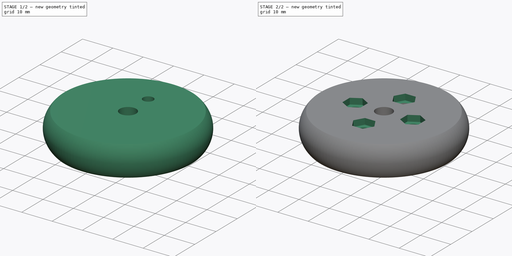
[diagram: build sequence overview — one tinted view per stage of 2, left to right]
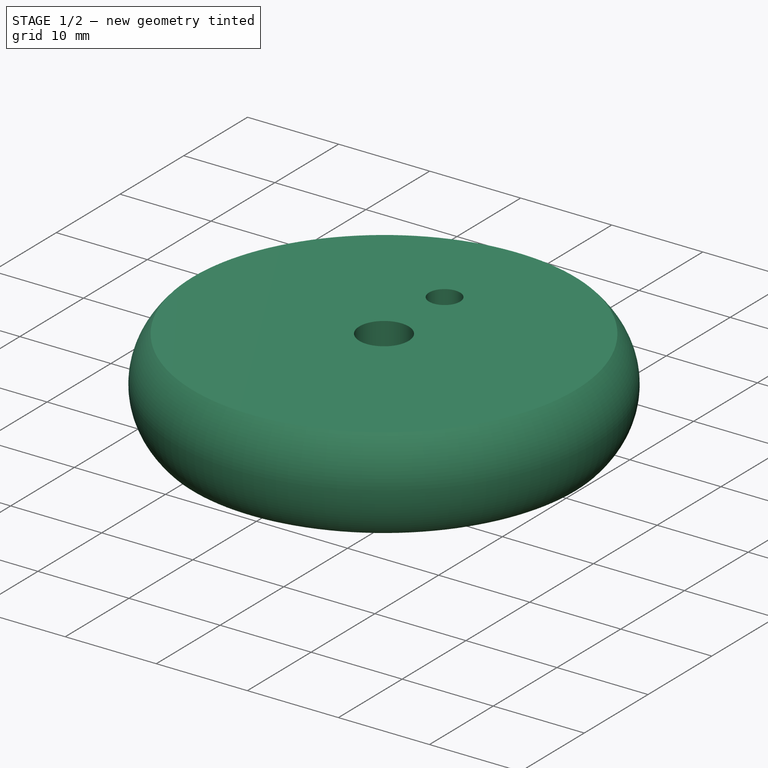
[diagram: stage 1 of 2 — iso view after this stage's code; geometry added in this stage tinted green]
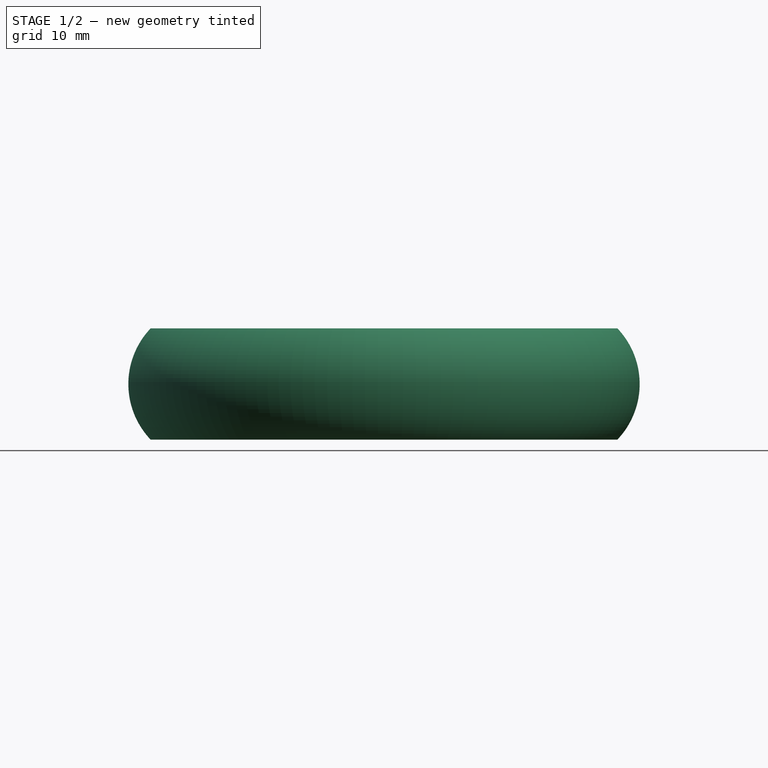
[diagram: stage 1 of 2 — front view after this stage's code; geometry added in this stage tinted green]
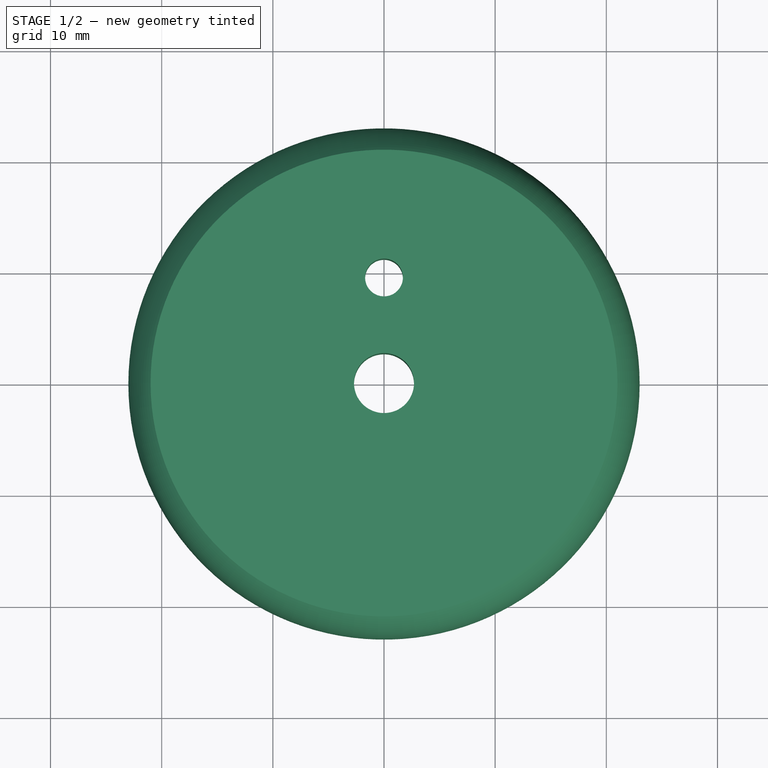
[diagram: stage 1 of 2 — top view after this stage's code; geometry added in this stage tinted green]
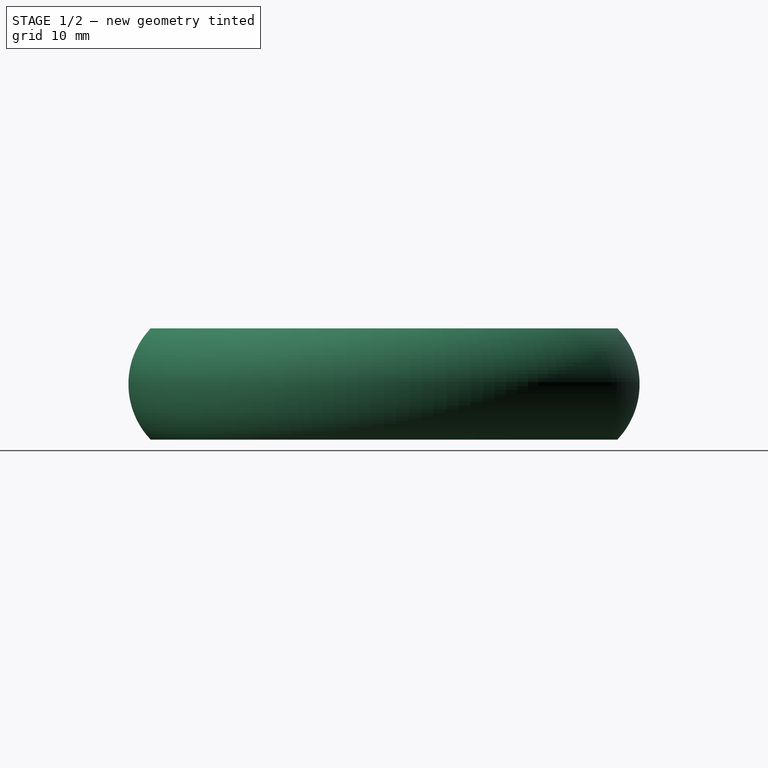
[diagram: stage 1 of 2 — right view after this stage's code; geometry added in this stage tinted green]
FCSTD DOCUMENT  (FreeCAD 0.20R29410 (Git))
Label: DriveWheelHub
License: All rights reserved
LicenseURL: http://en.wikipedia.org/wiki/All_rights_reserved
objects: App::DocumentObjectGroup×3, Sketcher::SketchObject×3, PartDesign::CoordinateSystem×2, PartDesign::Pocket×2, App::FeaturePython×1, PartDesign::Revolution×1, PartDesign::PolarPattern×1, PartDesign::Body×1, App::Part×1
note: 13 computed .brp shape members not serialized (recipe doc carries the construction recipe); baked Part::Feature solids carry a one-line shape summary decoded from their .brp
EXTERNAL_REF file=Params.FCStd obj=Spreadsheet

FEATURE [App::DocumentObjectGroup] Parts
FEATURE [PartDesign::CoordinateSystem] LCS_Origin
  AttacherType = Attacher::AttachEngine3D
  MapMode = 2
  Support = -> [X_Axis]
FEATURE [App::FeaturePython] Variables  # WARN: FeaturePython — macro-defined, semantics opaque (R4)
  Type = App::PropertyContainer
FEATURE [App::DocumentObjectGroup] Constraints
FEATURE [App::DocumentObjectGroup] Configurations
FEATURE [Sketcher::SketchObject] Sketch
  FullyConstrained = true
  MapMode = 5
  Placement = pos=(0,0,0) rot=(1,0,0;1.5708rad)
  Support = -> [XZ_Plane001]
  expr: Constraints[10] = <<Params>>#<<Params>>.DriveWheelWidth
  expr: Constraints[27] = <<Params>>#<<Params>>.DriveWheelCrown
  expr: Constraints[28] = <<Params>>#<<Params>>.DriveWheelMajorDiameter / 2 - <<Params>>#<<Params>>.DriveWheelTireThickness
  sketch-geometry (11):
    g0: LineSegment StartX=14 StartY=-5 StartZ=0 EndX=14 EndY=-3 EndZ=0
    g1: LineSegment StartX=13 StartY=-2 StartZ=0 EndX=2.7 EndY=-2 EndZ=0
    g2: LineSegment StartX=2.7 StartY=-2 StartZ=0 EndX=2.7 EndY=5 EndZ=0
    g3: LineSegment StartX=2.7 StartY=5 StartZ=0 EndX=21 EndY=5 EndZ=0
    g4: LineSegment StartX=21 StartY=-5 StartZ=0 EndX=14 EndY=-5 EndZ=0
    g5: ArcOfCircle CenterX=13 CenterY=-3 CenterZ=0 NormalX=0 NormalY=0 NormalZ=1 AngleXU=0 Radius=1 StartAngle=0 EndAngle=1.5708
    g6: GeomPoint X=14 Y=-2 Z=0
    g7: ArcOfCircle CenterX=15.75 CenterY=0 CenterZ=0 NormalX=0 NormalY=0 NormalZ=1 AngleXU=0 Radius=7.25 StartAngle=5.52217 EndAngle=7.0442
    g8: LineSegment StartX=21 StartY=5 StartZ=0 EndX=21 EndY=-5 EndZ=0
    g9: LineSegment StartX=15.75 StartY=0 StartZ=0 EndX=21 EndY=0 EndZ=0
    g10: LineSegment StartX=21 StartY=0 StartZ=0 EndX=23 EndY=0 EndZ=0
  constraints (32):
    c: Vertical(g0)
    c: Horizontal(g1)
    c: Coincident(g1,g2)
    c: Vertical(g2)
    c: Coincident(g2,g3)
    c: Horizontal(g3)
    c: Coincident(g4,g0)
    c: DistanceX(g-1,g0) = 14
    c: DistanceY(g0,g6) = 3
    c: DistanceX(g-1,g1) = 2.7
    c: DistanceY(g4,g3) = 10
    c: PointOnObject(g6,g0)
    c: PointOnObject(g6,g1)
    c: Tangent(g0,g5) = -1.5708
    c: Tangent(g1,g5) = -1.5708
    c: Radius(g5) = 1
    c: Coincident(g7,g3)
    c: Coincident(g7,g4)
    c: Coincident(g8,g3)
    c: Coincident(g8,g4)
    c: Vertical(g8)
    c: Coincident(g9,g7)
    c: PointOnObject(g9,g8)
    c: Horizontal(g9)
    c: Coincident(g10,g9)
    c: PointOnObject(g10,g7)
    c: Horizontal(g10)
    c: DistanceX(g10,g10) = 2
    c: DistanceX(g-1,g10) = 23
    c: Horizontal(g4)
    c: PointOnObject(g7,g-1)
    c: DistanceY(g1,g7) = 2  'MountOffset'
FEATURE [PartDesign::Revolution] Revolution
  Angle = 360
  Axis = (0,-2e-16,1)
  Base = (0,0,0)
  Placement = pos=(0,0,0) rot=(1,0,0;1.5708rad)
  Profile = -> Sketch
  ReferenceAxis = -> Sketch [V_Axis]
  Reversed = true
FEATURE [Sketcher::SketchObject] Sketch001
  AttachmentOffset = pos=(0,9.5,0) rot=(0,0,1;0rad)
  FullyConstrained = true
  MapMode = 5
  Placement = pos=(0,9.5,0) rot=(0,0,1;0rad)
  Support = -> [XY_Plane001]
  sketch-geometry (1):
    g0: Circle CenterX=0 CenterY=0 CenterZ=0 NormalX=0 NormalY=0 NormalZ=1 AngleXU=0 Radius=1.7
  constraints (2):
    c: Diameter(g0) = 3.4
    c: Coincident(g0,g-1)
FEATURE [PartDesign::Pocket] Pocket  label="MountHole"
  BaseFeature = -> Revolution
  Direction = (0,0,-1)
  Length = 5
  Length2 = 5
  Midplane = true
  Placement = pos=(0,0,0) rot=(1,0,0;1.5708rad)
  Profile = -> Sketch001
  ReferenceAxis = -> Sketch001 [N_Axis]
  Type = 1
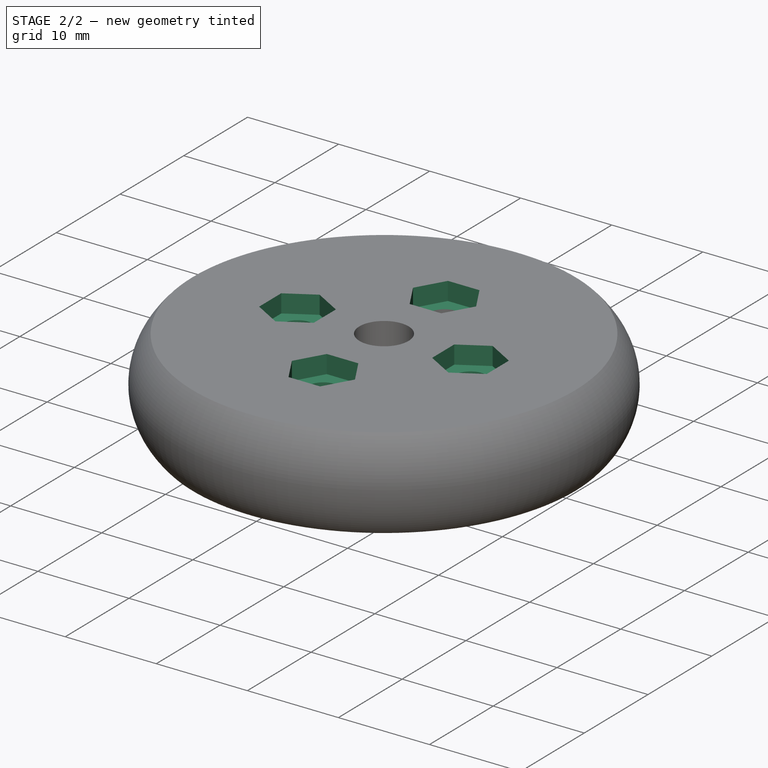
[diagram: stage 2 of 2 — iso view after this stage's code; geometry added in this stage tinted green]
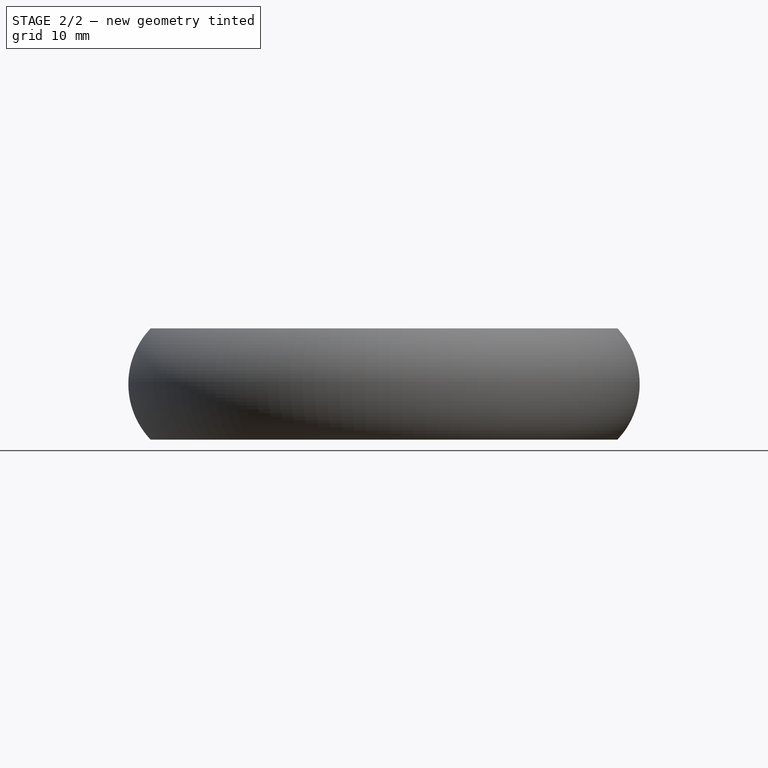
[diagram: stage 2 of 2 — front view after this stage's code; geometry added in this stage tinted green]
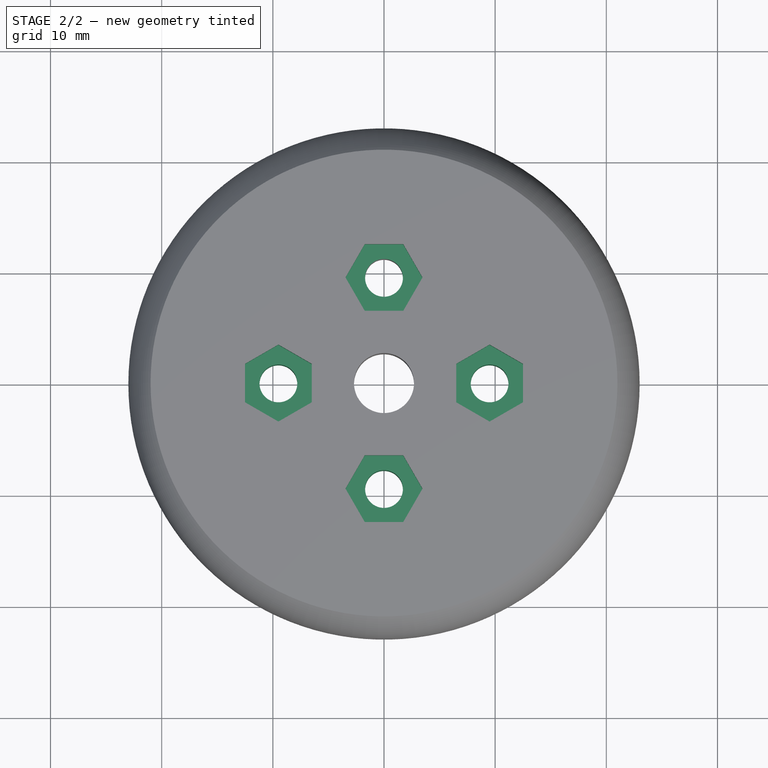
[diagram: stage 2 of 2 — top view after this stage's code; geometry added in this stage tinted green]
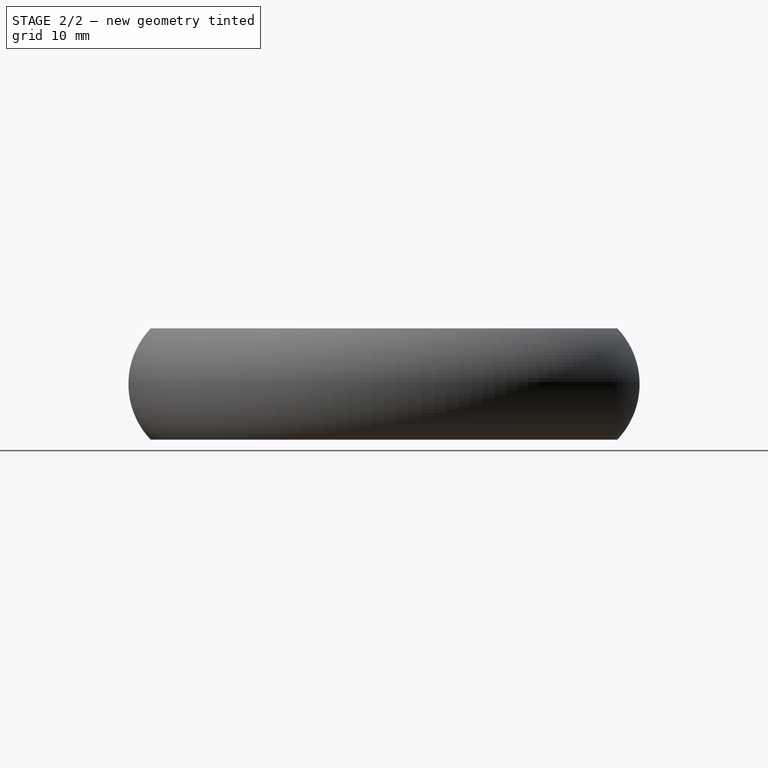
[diagram: stage 2 of 2 — right view after this stage's code; geometry added in this stage tinted green]
FEATURE [PartDesign::CoordinateSystem] LCS_Mount
  AttacherType = Attacher::AttachEngine3D
  AttachmentOffset = pos=(0,0,-2) rot=(0,0,1;0rad)
  MapMode = 2
  Placement = pos=(0,0,-2) rot=(0,0,1;0rad)
  Support = -> [LCS_Origin]
  expr: .AttachmentOffset.Base.z = <<Sketch>>.Constraints.MountOffset * -1
FEATURE [Sketcher::SketchObject] Sketch002
  AttachmentOffset = pos=(0,0,3) rot=(0,0,1;0rad)
  FullyConstrained = true
  MapMode = 2
  Placement = pos=(0,9.5,3) rot=(0,0,1;0rad)
  Support = -> [Sketch001]
  expr: .AttachmentOffset.Base.z = <<Params>>#<<Params>>.DriveWheelWidth / 2 - 2
  sketch-geometry (7):
    g0: LineSegment StartX=1.73205 StartY=-3 StartZ=0 EndX=3.4641 EndY=-4.8876e-12 EndZ=0
    g1: LineSegment StartX=3.4641 StartY=-4.8876e-12 StartZ=0 EndX=1.73205 EndY=3 EndZ=0
    g2: LineSegment StartX=1.73205 StartY=3 StartZ=0 EndX=-1.73205 EndY=3 EndZ=0
    g3: LineSegment StartX=-1.73205 StartY=3 StartZ=0 EndX=-3.4641 EndY=-3.1846e-12 EndZ=0
    g4: LineSegment StartX=-3.4641 StartY=-3.1846e-12 StartZ=0 EndX=-1.73205 EndY=-3 EndZ=0
    g5: LineSegment StartX=-1.73205 StartY=-3 StartZ=0 EndX=1.73205 EndY=-3 EndZ=0
    g6: Circle CenterX=0 CenterY=0 CenterZ=0 NormalX=0 NormalY=0 NormalZ=1 AngleXU=0 Radius=3.4641
  constraints (16):
    c: Coincident(g0,g1)
    c: Coincident(g1,g2)
    c: Coincident(g2,g3)
    c: Coincident(g3,g4)
    c: Coincident(g4,g5)
    c: Coincident(g5,g0)
    c: Equal(g0, g1-g5) x5
    c: PointOnObject(g0,g6)
    c: PointOnObject(g1,g6)
    c: PointOnObject(g2,g6)
    c: PointOnObject(g3,g6)
    c: PointOnObject(g4,g6)
    c: PointOnObject(g5,g6)
    c: Coincident(g6,g-1)
    c: Horizontal(g5)
    c: DistanceY(g0,g1) = 6
FEATURE [PartDesign::Pocket] Pocket001  label="NutPocket"
  BaseFeature = -> Pocket
  Direction = (0,0,-1)
  Length = 5
  Length2 = 5
  Placement = pos=(0,0,0) rot=(1,0,0;1.5708rad)
  Profile = -> Sketch002
  ReferenceAxis = -> Sketch002 [N_Axis]
  Reversed = true
  Type = 1
FEATURE [PartDesign::PolarPattern] PolarPattern  label="MountHolePattern"
  Angle = 360
  Axis = -> Z_Axis001
  BaseFeature = -> Pocket001
  Occurrences = 4
  Originals = -> [Pocket,Pocket001]
  Placement = pos=(0,0,0) rot=(1,0,0;1.5708rad)
FEATURE [PartDesign::Body] Body
  Group = -> [Sketch,Revolution,Sketch001,Pocket,Pocket001,PolarPattern,Sketch002]
  Origin = -> Origin001
  Tip = -> PolarPattern
FEATURE [App::Part] Assembly
  AssemblyType = Part::Link
  Group = -> [LCS_Origin,Variables,Constraints,Configurations,Body,LCS_Mount]
  Origin = -> Origin
  Type = Assembly
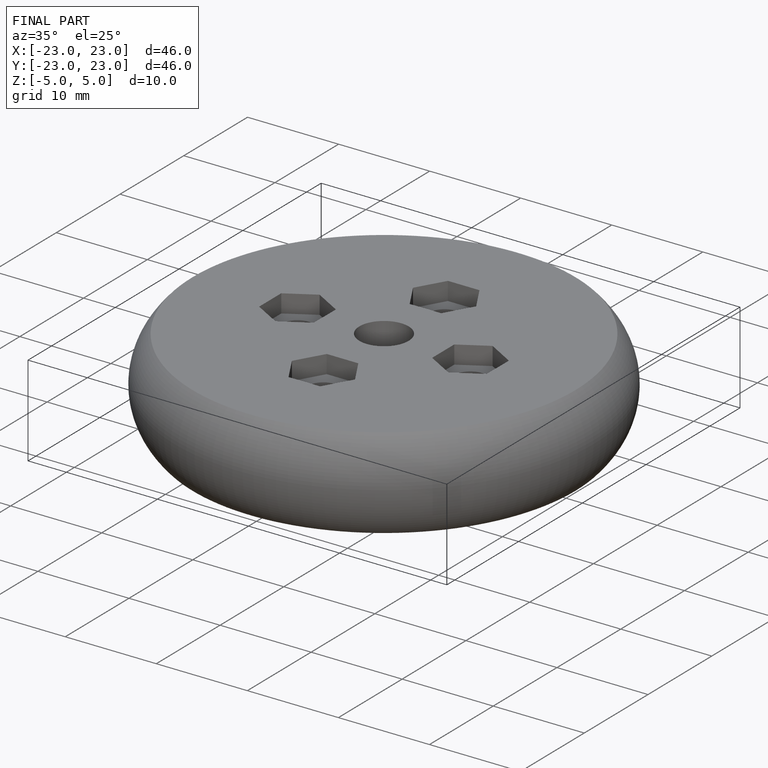
[diagram: finished part — iso view with bounding-box wireframe]
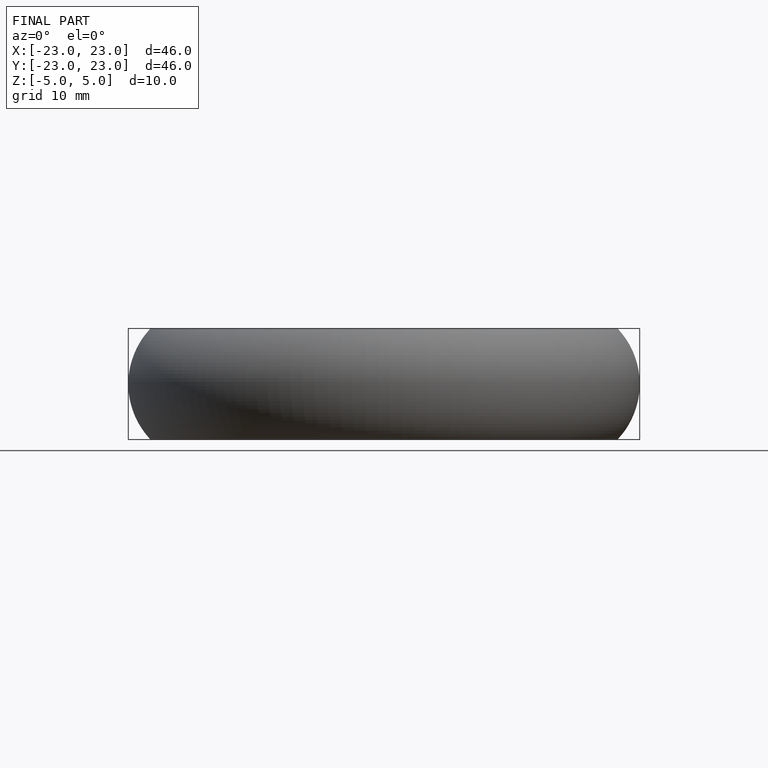
[diagram: finished part — front view with bounding-box wireframe]
